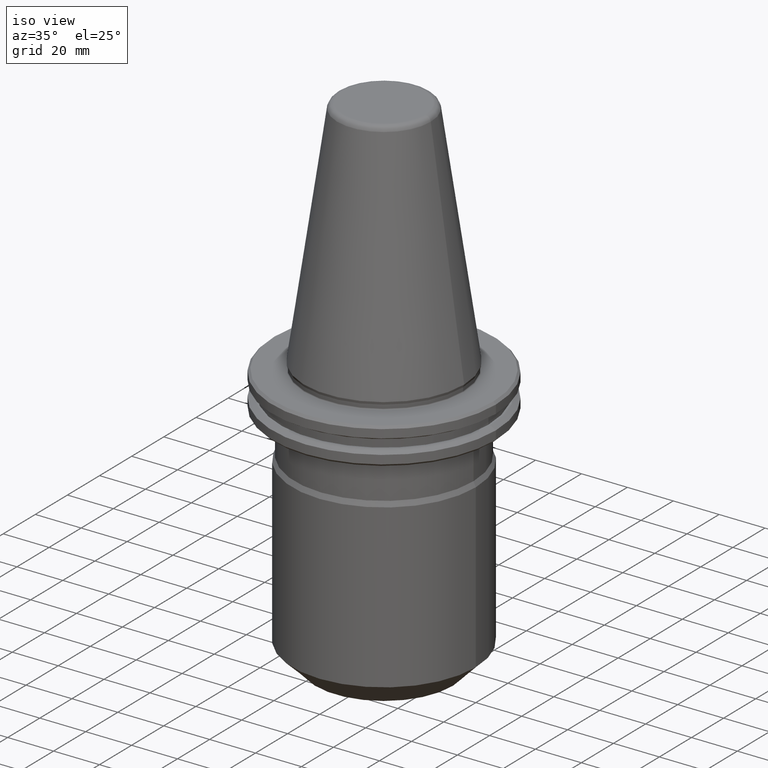
[diagram: clean part render]
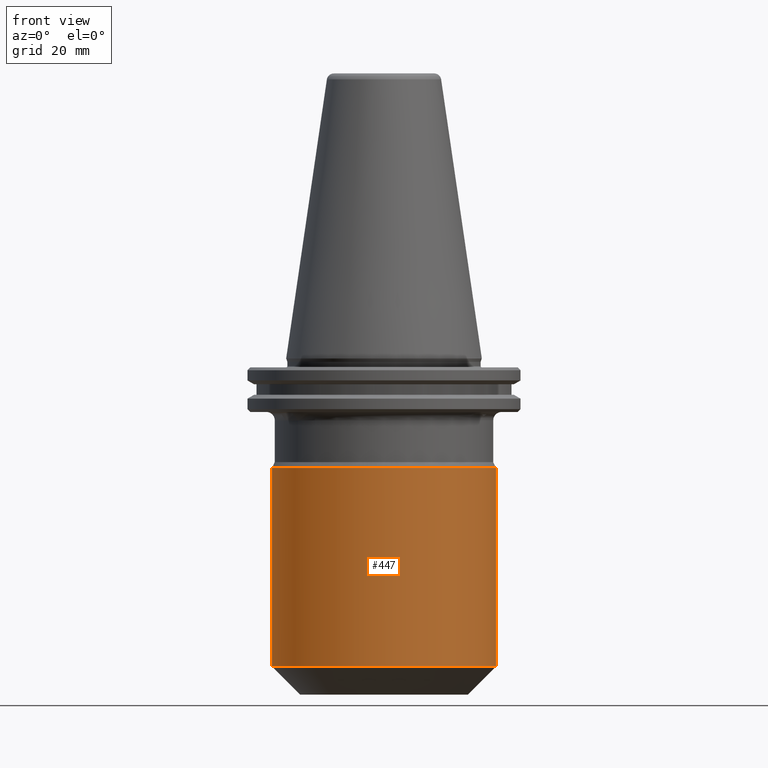
[diagram: tour spotlight — one face highlighted and labeled with its STEP entity id]
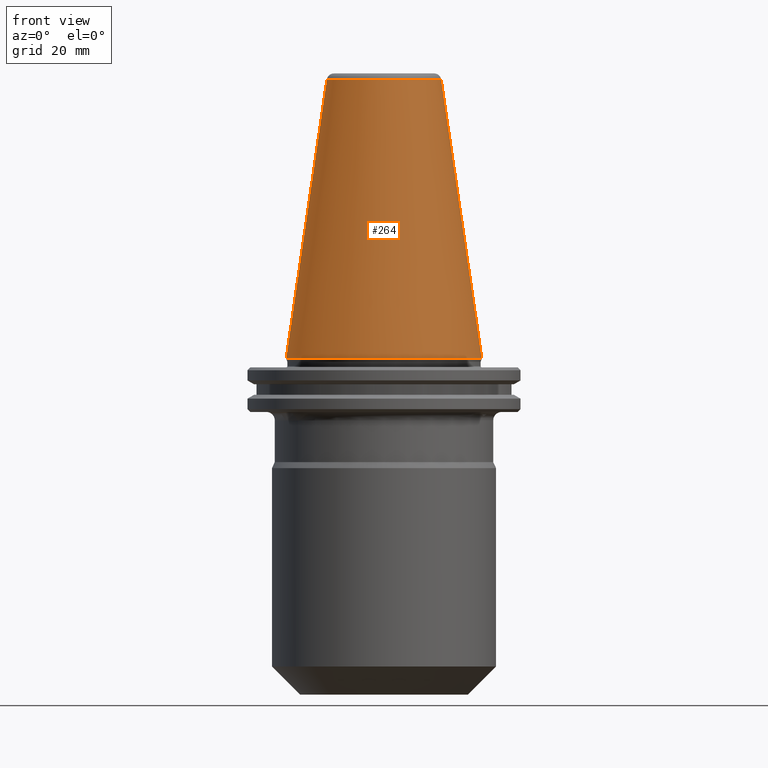
[diagram: tour spotlight — one face highlighted and labeled with its STEP entity id]
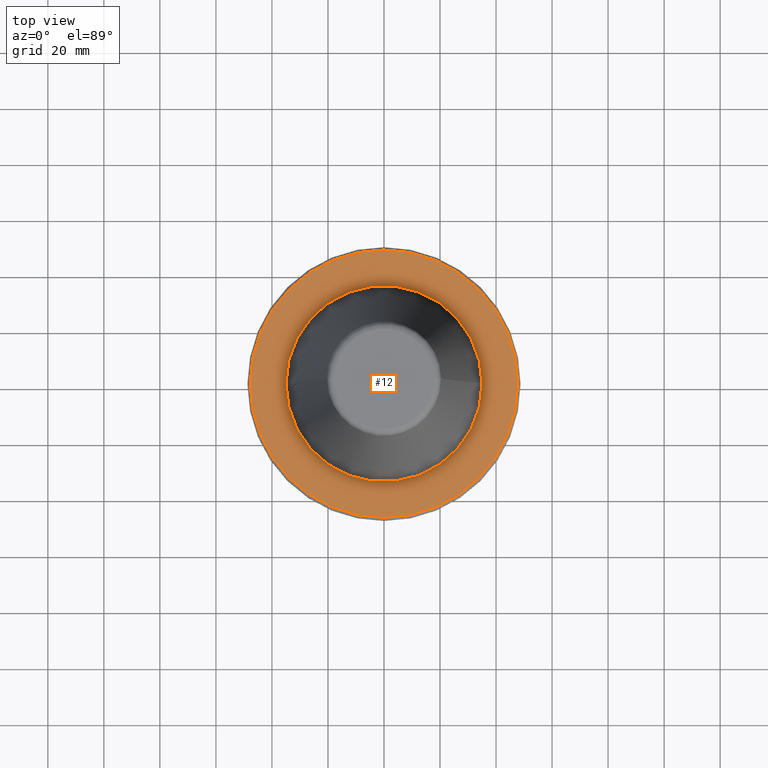
[diagram: tour spotlight — one face highlighted and labeled with its STEP entity id]
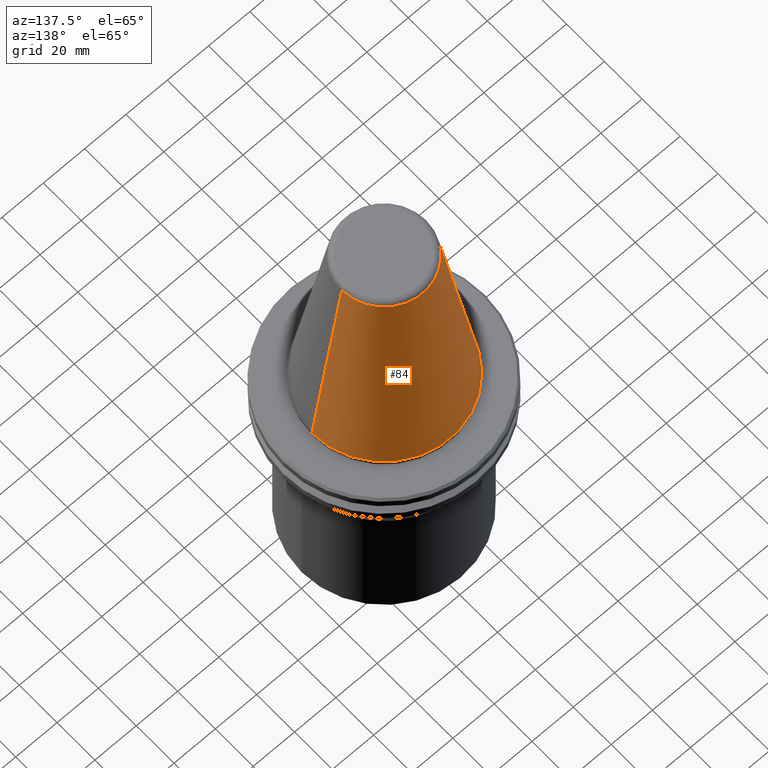
[diagram: tour spotlight — one face highlighted and labeled with its STEP entity id]
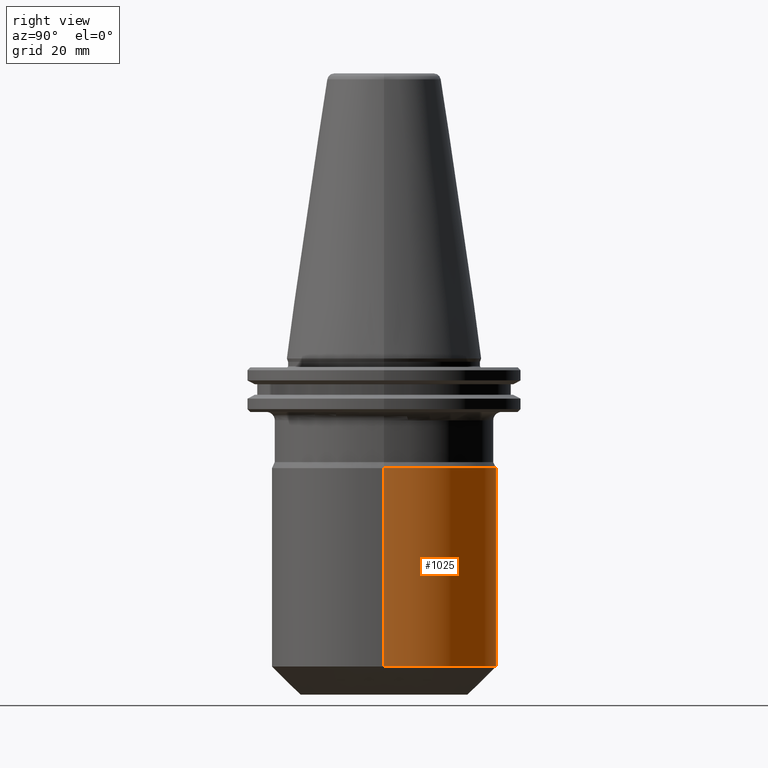
[diagram: tour spotlight — one face highlighted and labeled with its STEP entity id]
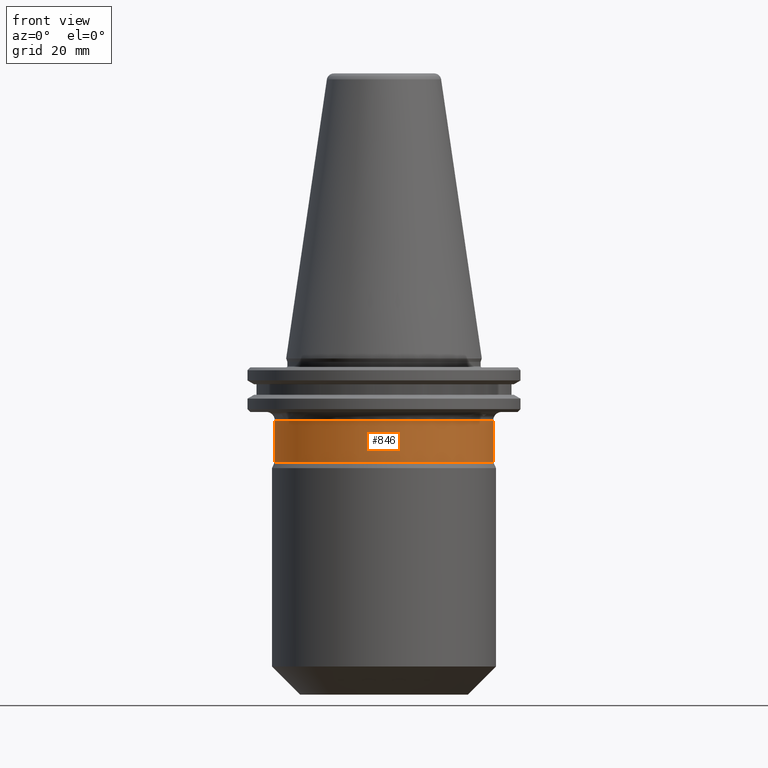
[diagram: tour spotlight — one face highlighted and labeled with its STEP entity id]
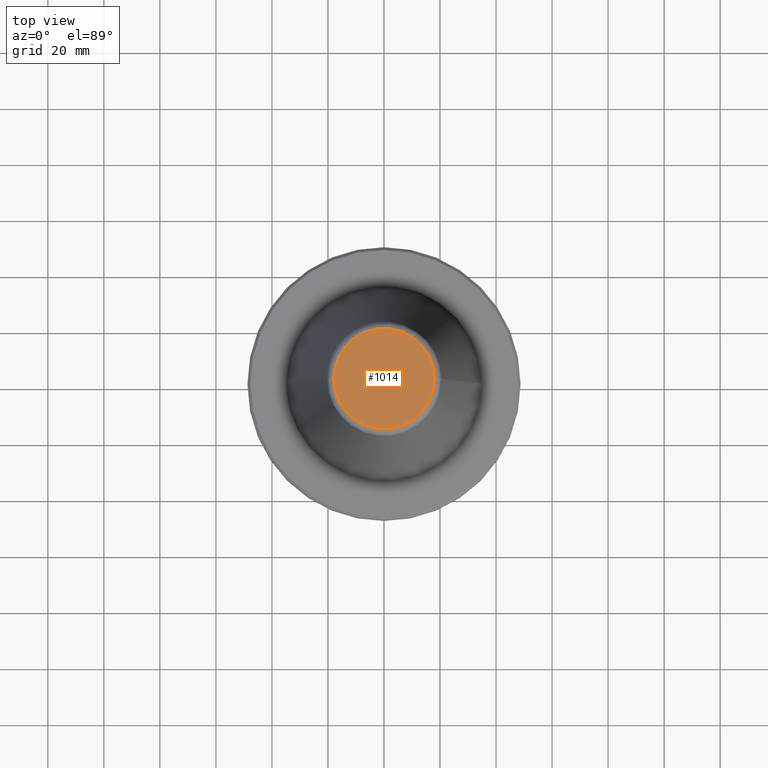
[diagram: tour spotlight — one face highlighted and labeled with its STEP entity id]
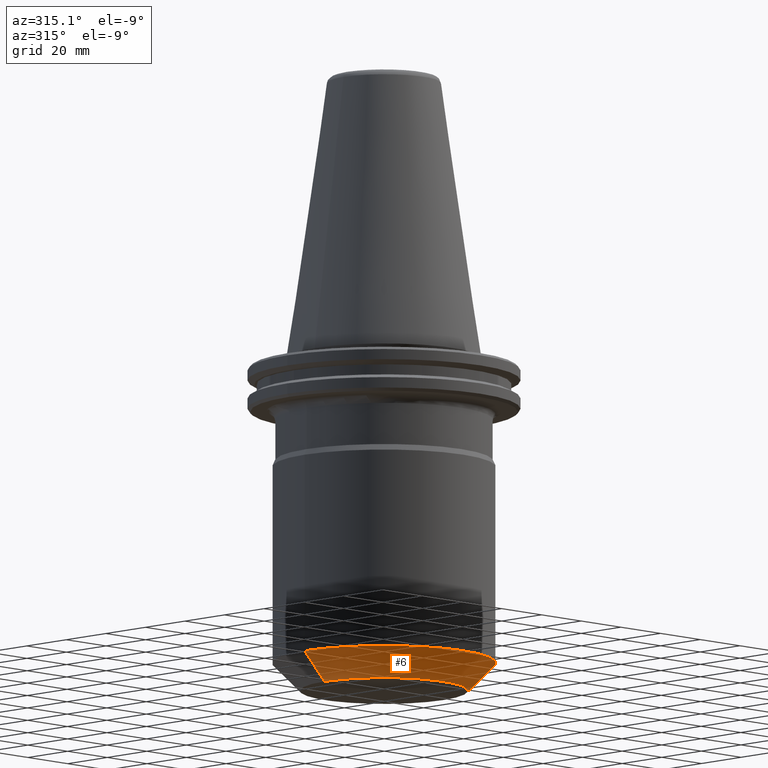
[diagram: tour spotlight — one face highlighted and labeled with its STEP entity id]
A machine part: a face-by-face anatomy tour. The part has 40 B-rep faces; the first image is the clean iso view, then the 8 largest visible faces are spotlighted one at a time (largest first), each with its STEP entity span.

Face 1 — front view, entity #447. In plain terms, the highlighted cylindrical surface (partial cylindrical patch) has radius 40 mm, axis along (-0, -0, 1).
Definition (entity closure, byte-faithful):
#38 = VERTEX_POINT ( 'NONE', #164 ) ;
#44 = CARTESIAN_POINT ( 'NONE',  ( -40.00000000000000000, 4.898587196589413000E-015, 158.1180504483445200 ) ) ;
#164 = CARTESIAN_POINT ( 'NONE',  ( -40.00000000000000000, 0.0000000000000000000, -39.13999999999995100 ) ) ;
#168 = EDGE_CURVE ( 'NONE', #38, #751, #490, .T. ) ;
#184 = EDGE_LOOP ( 'NONE', ( #298, #229, #210, #521 ) ) ;
#196 = CYLINDRICAL_SURFACE ( 'NONE', #488, 40.00000000000000000 ) ;
#201 = CARTESIAN_POINT ( 'NONE',  ( 40.00000000000000000, 0.0000000000000000000, -110.0000000000001300 ) ) ;
#210 = ORIENTED_EDGE ( 'NONE', *, *, #580, .T. ) ;
#213 = CARTESIAN_POINT ( 'NONE',  ( 40.00000000000000000, 0.0000000000000000000, 158.1180504483445200 ) ) ;
#229 = ORIENTED_EDGE ( 'NONE', *, *, #460, .T. ) ;
#273 = DIRECTION ( 'NONE',  ( -0.0000000000000000000, -0.0000000000000000000, 1.000000000000000000 ) ) ;
#284 = VERTEX_POINT ( 'NONE', #201 ) ;
#298 = ORIENTED_EDGE ( 'NONE', *, *, #614, .F. ) ;
#299 = CARTESIAN_POINT ( 'NONE',  ( 0.0000000000000000000, 0.0000000000000000000, -39.13999999999995100 ) ) ;
#315 = LINE ( 'NONE', #44, #515 ) ;
#425 = CIRCLE ( 'NONE', #432, 40.00000000000000000 ) ;
#432 = AXIS2_PLACEMENT_3D ( 'NONE', #891, #273, #858 ) ;
#447 = ADVANCED_FACE ( 'NONE', ( #866 ), #196, .T. ) ;
#448 = DIRECTION ( 'NONE',  ( -0.0000000000000000000, -0.0000000000000000000, 1.000000000000000000 ) ) ;
#460 = EDGE_CURVE ( 'NONE', #568, #284, #425, .T. ) ;
#485 = DIRECTION ( 'NONE',  ( -0.0000000000000000000, -0.0000000000000000000, 1.000000000000000000 ) ) ;
#488 = AXIS2_PLACEMENT_3D ( 'NONE', #759, #448, #1079 ) ;
#490 = CIRCLE ( 'NONE', #1090, 40.00000000000000000 ) ;
#515 = VECTOR ( 'NONE', #732, 1000.000000000000000 ) ;
#521 = ORIENTED_EDGE ( 'NONE', *, *, #168, .F. ) ;
#531 = CARTESIAN_POINT ( 'NONE',  ( -40.00000000000000000, 4.898587196589413000E-015, -110.0000000000001300 ) ) ;
#548 = DIRECTION ( 'NONE',  ( 1.000000000000000000, 0.0000000000000000000, 0.0000000000000000000 ) ) ;
#568 = VERTEX_POINT ( 'NONE', #531 ) ;
#580 = EDGE_CURVE ( 'NONE', #284, #751, #987, .T. ) ;
#614 = EDGE_CURVE ( 'NONE', #568, #38, #315, .T. ) ;
#732 = DIRECTION ( 'NONE',  ( -0.0000000000000000000, -0.0000000000000000000, 1.000000000000000000 ) ) ;
#751 = VERTEX_POINT ( 'NONE', #822 ) ;
#759 = CARTESIAN_POINT ( 'NONE',  ( 0.0000000000000000000, 0.0000000000000000000, 158.1180504483445200 ) ) ;
#764 = VECTOR ( 'NONE', #485, 1000.000000000000000 ) ;
#799 = DIRECTION ( 'NONE',  ( -0.0000000000000000000, -0.0000000000000000000, 1.000000000000000000 ) ) ;
#822 = CARTESIAN_POINT ( 'NONE',  ( 40.00000000000000000, 4.898587196589413000E-015, -39.13999999999995100 ) ) ;
#858 = DIRECTION ( 'NONE',  ( 1.000000000000000000, 0.0000000000000000000, 0.0000000000000000000 ) ) ;
#866 = FACE_OUTER_BOUND ( 'NONE', #184, .T. ) ;
#891 = CARTESIAN_POINT ( 'NONE',  ( 0.0000000000000000000, 0.0000000000000000000, -110.0000000000001300 ) ) ;
#987 = LINE ( 'NONE', #213, #764 ) ;
#1079 = DIRECTION ( 'NONE',  ( 1.000000000000000000, 0.0000000000000000000, 0.0000000000000000000 ) ) ;
#1090 = AXIS2_PLACEMENT_3D ( 'NONE', #299, #799, #548 ) ;

Face 2 — front view, entity #264. In plain terms, the highlighted conical surface has half-angle 8.297 deg.
Definition (entity closure, byte-faithful):
#20 = DIRECTION ( 'NONE',  ( -0.0000000000000000000, -0.0000000000000000000, 1.000000000000000000 ) ) ;
#56 = ORIENTED_EDGE ( 'NONE', *, *, #661, .F. ) ;
#71 = VECTOR ( 'NONE', #511, 1000.000000000000000 ) ;
#100 = CARTESIAN_POINT ( 'NONE',  ( 20.39829252569114000, 3.387574655494023600E-015, 99.61077055857353500 ) ) ;
#102 = VERTEX_POINT ( 'NONE', #569 ) ;
#188 = DIRECTION ( 'NONE',  ( 1.000000000000000000, 0.0000000000000000000, 0.0000000000000000000 ) ) ;
#203 = CARTESIAN_POINT ( 'NONE',  ( -34.92500000000009700, 0.0000000000000000000, -5.551115123125782700E-014 ) ) ;
#264 = ADVANCED_FACE ( 'NONE', ( #1082 ), #1028, .T. ) ;
#278 = VERTEX_POINT ( 'NONE', #100 ) ;
#289 = CIRCLE ( 'NONE', #295, 20.39829252569114000 ) ;
#295 = AXIS2_PLACEMENT_3D ( 'NONE', #913, #20, #842 ) ;
#363 = ORIENTED_EDGE ( 'NONE', *, *, #996, .T. ) ;
#380 = VERTEX_POINT ( 'NONE', #933 ) ;
#406 = EDGE_CURVE ( 'NONE', #278, #102, #503, .T. ) ;
#470 = EDGE_LOOP ( 'NONE', ( #594, #56, #363, #525 ) ) ;
#503 = LINE ( 'NONE', #703, #71 ) ;
#511 = DIRECTION ( 'NONE',  ( 0.1443082234293891500, 1.767266039134425100E-017, -0.9895327870518760800 ) ) ;
#525 = ORIENTED_EDGE ( 'NONE', *, *, #539, .T. ) ;
#539 = EDGE_CURVE ( 'NONE', #380, #102, #1047, .T. ) ;
#552 = DIRECTION ( 'NONE',  ( -1.000000000000000000, 0.0000000000000000000, 0.0000000000000000000 ) ) ;
#569 = CARTESIAN_POINT ( 'NONE',  ( 34.92500000000009700, 0.0000000000000000000, -5.551115123125782700E-014 ) ) ;
#573 = AXIS2_PLACEMENT_3D ( 'NONE', #837, #898, #552 ) ;
#594 = ORIENTED_EDGE ( 'NONE', *, *, #406, .F. ) ;
#626 = CARTESIAN_POINT ( 'NONE',  ( 0.0000000000000000000, 0.0000000000000000000, -5.551115123125782700E-014 ) ) ;
#647 = DIRECTION ( 'NONE',  ( -0.1443082234293891500, 0.0000000000000000000, -0.9895327870518760800 ) ) ;
#661 = EDGE_CURVE ( 'NONE', #758, #278, #289, .T. ) ;
#703 = CARTESIAN_POINT ( 'NONE',  ( 34.92500000000009700, 4.277078946022142700E-015, -5.551115123125782700E-014 ) ) ;
#758 = VERTEX_POINT ( 'NONE', #769 ) ;
#769 = CARTESIAN_POINT ( 'NONE',  ( -20.39829252569114000, 0.0000000000000000000, 99.61077055857353500 ) ) ;
#782 = DIRECTION ( 'NONE',  ( -0.0000000000000000000, -0.0000000000000000000, 1.000000000000000000 ) ) ;
#837 = CARTESIAN_POINT ( 'NONE',  ( 0.0000000000000000000, 0.0000000000000000000, -5.551115123125782700E-014 ) ) ;
#838 = VECTOR ( 'NONE', #647, 1000.000000000000000 ) ;
#842 = DIRECTION ( 'NONE',  ( 1.000000000000000000, 0.0000000000000000000, 0.0000000000000000000 ) ) ;
#876 = AXIS2_PLACEMENT_3D ( 'NONE', #626, #782, #188 ) ;
#898 = DIRECTION ( 'NONE',  ( 0.0000000000000000000, 0.0000000000000000000, -1.000000000000000000 ) ) ;
#913 = CARTESIAN_POINT ( 'NONE',  ( 0.0000000000000000000, 0.0000000000000000000, 99.61077055857353500 ) ) ;
#933 = CARTESIAN_POINT ( 'NONE',  ( -34.92500000000009700, 4.277078946022142700E-015, -5.551115123125782700E-014 ) ) ;
#996 = EDGE_CURVE ( 'NONE', #758, #380, #1071, .T. ) ;
#1028 = CONICAL_SURFACE ( 'NONE', #573, 34.92500000000009700, 0.1448138426689039600 ) ;
#1047 = CIRCLE ( 'NONE', #876, 34.92500000000009700 ) ;
#1071 = LINE ( 'NONE', #203, #838 ) ;
#1082 = FACE_OUTER_BOUND ( 'NONE', #470, .T. ) ;

Face 3 — top view, entity #12. In plain terms, the highlighted planar face has unit normal (0, 0, -1).
Definition (entity closure, byte-faithful):
#12 = ADVANCED_FACE ( 'NONE', ( #634, #1073 ), #811, .F. ) ;
#15 = EDGE_CURVE ( 'NONE', #374, #589, #167, .T. ) ;
#51 = CARTESIAN_POINT ( 'NONE',  ( 0.0000000000000000000, 47.74999999999995700, -3.199999999999869600 ) ) ;
#62 = DIRECTION ( 'NONE',  ( 1.000000000000000000, 0.0000000000000000000, 0.0000000000000000000 ) ) ;
#101 = DIRECTION ( 'NONE',  ( -0.0000000000000000000, -0.0000000000000000000, 1.000000000000000000 ) ) ;
#139 = ORIENTED_EDGE ( 'NONE', *, *, #384, .F. ) ;
#142 = AXIS2_PLACEMENT_3D ( 'NONE', #717, #472, #62 ) ;
#167 = CIRCLE ( 'NONE', #757, 47.74999999999995700 ) ;
#216 = DIRECTION ( 'NONE',  ( 1.000000000000000000, 0.0000000000000000000, 0.0000000000000000000 ) ) ;
#219 = CARTESIAN_POINT ( 'NONE',  ( 0.0000000000000000000, 0.0000000000000000000, -3.199999999999869600 ) ) ;
#250 = EDGE_CURVE ( 'NONE', #630, #1085, #853, .T. ) ;
#306 = DIRECTION ( 'NONE',  ( 1.000000000000000000, 0.0000000000000000000, 0.0000000000000000000 ) ) ;
#330 = CARTESIAN_POINT ( 'NONE',  ( 34.99999999999992200, 0.0000000000000000000, -3.199999999999966900 ) ) ;
#374 = VERTEX_POINT ( 'NONE', #953 ) ;
#384 = EDGE_CURVE ( 'NONE', #1085, #630, #946, .T. ) ;
#396 = CARTESIAN_POINT ( 'NONE',  ( 0.0000000000000000000, 0.0000000000000000000, -3.199999999999869600 ) ) ;
#403 = DIRECTION ( 'NONE',  ( -1.000000000000000000, 0.0000000000000000000, -0.0000000000000000000 ) ) ;
#456 = AXIS2_PLACEMENT_3D ( 'NONE', #396, #1050, #216 ) ;
#468 = EDGE_LOOP ( 'NONE', ( #673, #139 ) ) ;
#472 = DIRECTION ( 'NONE',  ( -0.0000000000000000000, -0.0000000000000000000, 1.000000000000000000 ) ) ;
#556 = CARTESIAN_POINT ( 'NONE',  ( -34.99999999999992200, 4.286263797015727000E-015, -3.199999999999966900 ) ) ;
#557 = EDGE_CURVE ( 'NONE', #589, #374, #602, .T. ) ;
#585 = CARTESIAN_POINT ( 'NONE',  ( 0.0000000000000000000, 0.0000000000000000000, -3.199999999999869600 ) ) ;
#589 = VERTEX_POINT ( 'NONE', #861 ) ;
#590 = EDGE_LOOP ( 'NONE', ( #809, #807 ) ) ;
#602 = CIRCLE ( 'NONE', #930, 47.74999999999995700 ) ;
#630 = VERTEX_POINT ( 'NONE', #330 ) ;
#634 = FACE_BOUND ( 'NONE', #468, .T. ) ;
#641 = DIRECTION ( 'NONE',  ( -0.0000000000000000000, -0.0000000000000000000, 1.000000000000000000 ) ) ;
#659 = DIRECTION ( 'NONE',  ( 0.0000000000000000000, 0.0000000000000000000, -1.000000000000000000 ) ) ;
#673 = ORIENTED_EDGE ( 'NONE', *, *, #250, .F. ) ;
#706 = DIRECTION ( 'NONE',  ( 1.000000000000000000, 0.0000000000000000000, 0.0000000000000000000 ) ) ;
#717 = CARTESIAN_POINT ( 'NONE',  ( 0.0000000000000000000, 0.0000000000000000000, -3.199999999999869600 ) ) ;
#757 = AXIS2_PLACEMENT_3D ( 'NONE', #219, #641, #306 ) ;
#807 = ORIENTED_EDGE ( 'NONE', *, *, #557, .T. ) ;
#808 = AXIS2_PLACEMENT_3D ( 'NONE', #51, #659, #403 ) ;
#809 = ORIENTED_EDGE ( 'NONE', *, *, #15, .T. ) ;
#811 = PLANE ( 'NONE',  #808 ) ;
#853 = CIRCLE ( 'NONE', #456, 34.99999999999992200 ) ;
#861 = CARTESIAN_POINT ( 'NONE',  ( 47.74999999999995700, 5.908920805885974100E-015, -3.199999999999869600 ) ) ;
#930 = AXIS2_PLACEMENT_3D ( 'NONE', #585, #101, #706 ) ;
#946 = CIRCLE ( 'NONE', #142, 34.99999999999992200 ) ;
#953 = CARTESIAN_POINT ( 'NONE',  ( -47.74999999999995700, 0.0000000000000000000, -3.199999999999869600 ) ) ;
#1050 = DIRECTION ( 'NONE',  ( -0.0000000000000000000, -0.0000000000000000000, 1.000000000000000000 ) ) ;
#1073 = FACE_OUTER_BOUND ( 'NONE', #590, .T. ) ;
#1085 = VERTEX_POINT ( 'NONE', #556 ) ;

Face 4 — auxiliary view, entity #84. In plain terms, the highlighted conical surface has half-angle 8.297 deg.
Definition (entity closure, byte-faithful):
#42 = AXIS2_PLACEMENT_3D ( 'NONE', #540, #792, #635 ) ;
#71 = VECTOR ( 'NONE', #511, 1000.000000000000000 ) ;
#84 = ADVANCED_FACE ( 'NONE', ( #793 ), #765, .T. ) ;
#100 = CARTESIAN_POINT ( 'NONE',  ( 20.39829252569114000, 3.387574655494023600E-015, 99.61077055857353500 ) ) ;
#102 = VERTEX_POINT ( 'NONE', #569 ) ;
#132 = DIRECTION ( 'NONE',  ( 0.0000000000000000000, 0.0000000000000000000, -1.000000000000000000 ) ) ;
#172 = DIRECTION ( 'NONE',  ( 1.000000000000000000, 0.0000000000000000000, 0.0000000000000000000 ) ) ;
#203 = CARTESIAN_POINT ( 'NONE',  ( -34.92500000000009700, 0.0000000000000000000, -5.551115123125782700E-014 ) ) ;
#215 = EDGE_LOOP ( 'NONE', ( #413, #723, #948, #371 ) ) ;
#247 = CARTESIAN_POINT ( 'NONE',  ( 0.0000000000000000000, 0.0000000000000000000, -5.551115123125782700E-014 ) ) ;
#259 = DIRECTION ( 'NONE',  ( -0.0000000000000000000, -0.0000000000000000000, 1.000000000000000000 ) ) ;
#278 = VERTEX_POINT ( 'NONE', #100 ) ;
#371 = ORIENTED_EDGE ( 'NONE', *, *, #996, .F. ) ;
#380 = VERTEX_POINT ( 'NONE', #933 ) ;
#406 = EDGE_CURVE ( 'NONE', #278, #102, #503, .T. ) ;
#413 = ORIENTED_EDGE ( 'NONE', *, *, #814, .F. ) ;
#475 = DIRECTION ( 'NONE',  ( -1.000000000000000000, 0.0000000000000000000, 0.0000000000000000000 ) ) ;
#503 = LINE ( 'NONE', #703, #71 ) ;
#511 = DIRECTION ( 'NONE',  ( 0.1443082234293891500, 1.767266039134425100E-017, -0.9895327870518760800 ) ) ;
#512 = EDGE_CURVE ( 'NONE', #102, #380, #633, .T. ) ;
#540 = CARTESIAN_POINT ( 'NONE',  ( 0.0000000000000000000, 0.0000000000000000000, 99.61077055857353500 ) ) ;
#569 = CARTESIAN_POINT ( 'NONE',  ( 34.92500000000009700, 0.0000000000000000000, -5.551115123125782700E-014 ) ) ;
#608 = AXIS2_PLACEMENT_3D ( 'NONE', #686, #259, #172 ) ;
#633 = CIRCLE ( 'NONE', #608, 34.92500000000009700 ) ;
#635 = DIRECTION ( 'NONE',  ( 1.000000000000000000, 0.0000000000000000000, 0.0000000000000000000 ) ) ;
#647 = DIRECTION ( 'NONE',  ( -0.1443082234293891500, 0.0000000000000000000, -0.9895327870518760800 ) ) ;
#686 = CARTESIAN_POINT ( 'NONE',  ( 0.0000000000000000000, 0.0000000000000000000, -5.551115123125782700E-014 ) ) ;
#703 = CARTESIAN_POINT ( 'NONE',  ( 34.92500000000009700, 4.277078946022142700E-015, -5.551115123125782700E-014 ) ) ;
#723 = ORIENTED_EDGE ( 'NONE', *, *, #406, .T. ) ;
#758 = VERTEX_POINT ( 'NONE', #769 ) ;
#765 = CONICAL_SURFACE ( 'NONE', #977, 34.92500000000009700, 0.1448138426689039600 ) ;
#769 = CARTESIAN_POINT ( 'NONE',  ( -20.39829252569114000, 0.0000000000000000000, 99.61077055857353500 ) ) ;
#792 = DIRECTION ( 'NONE',  ( -0.0000000000000000000, -0.0000000000000000000, 1.000000000000000000 ) ) ;
#793 = FACE_OUTER_BOUND ( 'NONE', #215, .T. ) ;
#814 = EDGE_CURVE ( 'NONE', #278, #758, #1026, .T. ) ;
#838 = VECTOR ( 'NONE', #647, 1000.000000000000000 ) ;
#933 = CARTESIAN_POINT ( 'NONE',  ( -34.92500000000009700, 4.277078946022142700E-015, -5.551115123125782700E-014 ) ) ;
#948 = ORIENTED_EDGE ( 'NONE', *, *, #512, .T. ) ;
#977 = AXIS2_PLACEMENT_3D ( 'NONE', #247, #132, #475 ) ;
#996 = EDGE_CURVE ( 'NONE', #758, #380, #1071, .T. ) ;
#1026 = CIRCLE ( 'NONE', #42, 20.39829252569114000 ) ;
#1071 = LINE ( 'NONE', #203, #838 ) ;

Face 5 — right view, entity #1025. In plain terms, the highlighted cylindrical surface (partial cylindrical patch) has radius 40 mm, axis along (-0, -0, 1).
Definition (entity closure, byte-faithful):
#31 = DIRECTION ( 'NONE',  ( -0.0000000000000000000, -0.0000000000000000000, 1.000000000000000000 ) ) ;
#38 = VERTEX_POINT ( 'NONE', #164 ) ;
#44 = CARTESIAN_POINT ( 'NONE',  ( -40.00000000000000000, 4.898587196589413000E-015, 158.1180504483445200 ) ) ;
#140 = CYLINDRICAL_SURFACE ( 'NONE', #372, 40.00000000000000000 ) ;
#164 = CARTESIAN_POINT ( 'NONE',  ( -40.00000000000000000, 0.0000000000000000000, -39.13999999999995100 ) ) ;
#192 = CARTESIAN_POINT ( 'NONE',  ( 0.0000000000000000000, 0.0000000000000000000, -110.0000000000001300 ) ) ;
#201 = CARTESIAN_POINT ( 'NONE',  ( 40.00000000000000000, 0.0000000000000000000, -110.0000000000001300 ) ) ;
#213 = CARTESIAN_POINT ( 'NONE',  ( 40.00000000000000000, 0.0000000000000000000, 158.1180504483445200 ) ) ;
#249 = FACE_OUTER_BOUND ( 'NONE', #975, .T. ) ;
#284 = VERTEX_POINT ( 'NONE', #201 ) ;
#315 = LINE ( 'NONE', #44, #515 ) ;
#332 = DIRECTION ( 'NONE',  ( -0.0000000000000000000, -0.0000000000000000000, 1.000000000000000000 ) ) ;
#344 = EDGE_CURVE ( 'NONE', #284, #568, #756, .T. ) ;
#361 = DIRECTION ( 'NONE',  ( -0.0000000000000000000, -0.0000000000000000000, 1.000000000000000000 ) ) ;
#372 = AXIS2_PLACEMENT_3D ( 'NONE', #605, #361, #538 ) ;
#381 = DIRECTION ( 'NONE',  ( 1.000000000000000000, 0.0000000000000000000, 0.0000000000000000000 ) ) ;
#410 = CARTESIAN_POINT ( 'NONE',  ( 0.0000000000000000000, 0.0000000000000000000, -39.13999999999995100 ) ) ;
#485 = DIRECTION ( 'NONE',  ( -0.0000000000000000000, -0.0000000000000000000, 1.000000000000000000 ) ) ;
#492 = EDGE_CURVE ( 'NONE', #751, #38, #1072, .T. ) ;
#515 = VECTOR ( 'NONE', #732, 1000.000000000000000 ) ;
#531 = CARTESIAN_POINT ( 'NONE',  ( -40.00000000000000000, 4.898587196589413000E-015, -110.0000000000001300 ) ) ;
#538 = DIRECTION ( 'NONE',  ( 1.000000000000000000, 0.0000000000000000000, 0.0000000000000000000 ) ) ;
#550 = AXIS2_PLACEMENT_3D ( 'NONE', #410, #332, #927 ) ;
#568 = VERTEX_POINT ( 'NONE', #531 ) ;
#580 = EDGE_CURVE ( 'NONE', #284, #751, #987, .T. ) ;
#605 = CARTESIAN_POINT ( 'NONE',  ( 0.0000000000000000000, 0.0000000000000000000, 158.1180504483445200 ) ) ;
#614 = EDGE_CURVE ( 'NONE', #568, #38, #315, .T. ) ;
#651 = ORIENTED_EDGE ( 'NONE', *, *, #580, .F. ) ;
#675 = ORIENTED_EDGE ( 'NONE', *, *, #344, .T. ) ;
#732 = DIRECTION ( 'NONE',  ( -0.0000000000000000000, -0.0000000000000000000, 1.000000000000000000 ) ) ;
#751 = VERTEX_POINT ( 'NONE', #822 ) ;
#756 = CIRCLE ( 'NONE', #840, 40.00000000000000000 ) ;
#764 = VECTOR ( 'NONE', #485, 1000.000000000000000 ) ;
#822 = CARTESIAN_POINT ( 'NONE',  ( 40.00000000000000000, 4.898587196589413000E-015, -39.13999999999995100 ) ) ;
#840 = AXIS2_PLACEMENT_3D ( 'NONE', #192, #31, #381 ) ;
#927 = DIRECTION ( 'NONE',  ( 1.000000000000000000, 0.0000000000000000000, 0.0000000000000000000 ) ) ;
#939 = ORIENTED_EDGE ( 'NONE', *, *, #614, .T. ) ;
#975 = EDGE_LOOP ( 'NONE', ( #675, #939, #1017, #651 ) ) ;
#987 = LINE ( 'NONE', #213, #764 ) ;
#1017 = ORIENTED_EDGE ( 'NONE', *, *, #492, .F. ) ;
#1025 = ADVANCED_FACE ( 'NONE', ( #249 ), #140, .T. ) ;
#1072 = CIRCLE ( 'NONE', #550, 40.00000000000000000 ) ;

Face 6 — front view, entity #846. In plain terms, the highlighted cylindrical surface (partial cylindrical patch) has radius 39 mm, axis along (-0, -0, 1).
Definition (entity closure, byte-faithful):
#11 = DIRECTION ( 'NONE',  ( 1.000000000000000000, 0.0000000000000000000, 0.0000000000000000000 ) ) ;
#21 = DIRECTION ( 'NONE',  ( 0.0000000000000000000, 0.0000000000000000000, -1.000000000000000000 ) ) ;
#28 = CARTESIAN_POINT ( 'NONE',  ( 39.00000000000000000, 0.0000000000000000000, -36.99549307949040200 ) ) ;
#32 = EDGE_CURVE ( 'NONE', #221, #1030, #819, .T. ) ;
#111 = EDGE_LOOP ( 'NONE', ( #648, #771, #211, #421 ) ) ;
#123 = VERTEX_POINT ( 'NONE', #28 ) ;
#151 = CIRCLE ( 'NONE', #741, 39.00000000000000000 ) ;
#163 = DIRECTION ( 'NONE',  ( -0.0000000000000000000, -0.0000000000000000000, 1.000000000000000000 ) ) ;
#202 = DIRECTION ( 'NONE',  ( -0.0000000000000000000, -0.0000000000000000000, 1.000000000000000000 ) ) ;
#211 = ORIENTED_EDGE ( 'NONE', *, *, #482, .T. ) ;
#221 = VERTEX_POINT ( 'NONE', #1008 ) ;
#317 = CARTESIAN_POINT ( 'NONE',  ( 0.0000000000000000000, 0.0000000000000000000, 158.1180504483445200 ) ) ;
#319 = EDGE_CURVE ( 'NONE', #1084, #1030, #151, .T. ) ;
#327 = FACE_OUTER_BOUND ( 'NONE', #111, .T. ) ;
#328 = AXIS2_PLACEMENT_3D ( 'NONE', #317, #163, #516 ) ;
#348 = CARTESIAN_POINT ( 'NONE',  ( 0.0000000000000000000, 0.0000000000000000000, -22.09999999999995200 ) ) ;
#421 = ORIENTED_EDGE ( 'NONE', *, *, #319, .T. ) ;
#449 = AXIS2_PLACEMENT_3D ( 'NONE', #554, #202, #932 ) ;
#455 = LINE ( 'NONE', #1036, #839 ) ;
#482 = EDGE_CURVE ( 'NONE', #123, #1084, #455, .T. ) ;
#516 = DIRECTION ( 'NONE',  ( 1.000000000000000000, 0.0000000000000000000, 0.0000000000000000000 ) ) ;
#533 = CYLINDRICAL_SURFACE ( 'NONE', #328, 39.00000000000000000 ) ;
#554 = CARTESIAN_POINT ( 'NONE',  ( 0.0000000000000000000, 0.0000000000000000000, -36.99549307949040200 ) ) ;
#603 = VECTOR ( 'NONE', #1075, 1000.000000000000000 ) ;
#642 = DIRECTION ( 'NONE',  ( -0.0000000000000000000, -0.0000000000000000000, 1.000000000000000000 ) ) ;
#648 = ORIENTED_EDGE ( 'NONE', *, *, #32, .F. ) ;
#724 = CARTESIAN_POINT ( 'NONE',  ( 39.00000000000000000, 0.0000000000000000000, -22.09999999999995200 ) ) ;
#734 = CIRCLE ( 'NONE', #449, 39.00000000000000000 ) ;
#741 = AXIS2_PLACEMENT_3D ( 'NONE', #348, #21, #11 ) ;
#771 = ORIENTED_EDGE ( 'NONE', *, *, #868, .T. ) ;
#819 = LINE ( 'NONE', #936, #603 ) ;
#839 = VECTOR ( 'NONE', #642, 1000.000000000000000 ) ;
#846 = ADVANCED_FACE ( 'NONE', ( #327 ), #533, .T. ) ;
#868 = EDGE_CURVE ( 'NONE', #221, #123, #734, .T. ) ;
#932 = DIRECTION ( 'NONE',  ( 1.000000000000000000, 0.0000000000000000000, 0.0000000000000000000 ) ) ;
#936 = CARTESIAN_POINT ( 'NONE',  ( -39.00000000000000000, 4.776122516674677900E-015, 158.1180504483445200 ) ) ;
#951 = CARTESIAN_POINT ( 'NONE',  ( -39.00000000000000000, 4.776122516674677900E-015, -22.09999999999995200 ) ) ;
#1008 = CARTESIAN_POINT ( 'NONE',  ( -39.00000000000000000, 4.776122516674677900E-015, -36.99549307949040200 ) ) ;
#1030 = VERTEX_POINT ( 'NONE', #951 ) ;
#1036 = CARTESIAN_POINT ( 'NONE',  ( 39.00000000000000000, 0.0000000000000000000, 158.1180504483445200 ) ) ;
#1075 = DIRECTION ( 'NONE',  ( -0.0000000000000000000, -0.0000000000000000000, 1.000000000000000000 ) ) ;
#1084 = VERTEX_POINT ( 'NONE', #724 ) ;

Face 7 — top view, entity #1014. In plain terms, the highlighted planar face has unit normal (0, 0, -1).
Definition (entity closure, byte-faithful):
#7 = DIRECTION ( 'NONE',  ( 1.000000000000000000, 0.0000000000000000000, 0.0000000000000000000 ) ) ;
#69 = CIRCLE ( 'NONE', #500, 17.92446055806129500 ) ;
#75 = AXIS2_PLACEMENT_3D ( 'NONE', #261, #1023, #459 ) ;
#85 = ORIENTED_EDGE ( 'NONE', *, *, #825, .T. ) ;
#94 = AXIS2_PLACEMENT_3D ( 'NONE', #429, #507, #849 ) ;
#98 = PLANE ( 'NONE',  #75 ) ;
#128 = CIRCLE ( 'NONE', #94, 17.92446055806129500 ) ;
#261 = CARTESIAN_POINT ( 'NONE',  ( 0.0000000000000000000, 17.92446055806129500, 101.7500000000000100 ) ) ;
#279 = CARTESIAN_POINT ( 'NONE',  ( 17.92446055806129500, 0.0000000000000000000, 101.7500000000000900 ) ) ;
#429 = CARTESIAN_POINT ( 'NONE',  ( 0.0000000000000000000, 0.0000000000000000000, 101.7500000000000900 ) ) ;
#459 = DIRECTION ( 'NONE',  ( -1.000000000000000000, 0.0000000000000000000, -0.0000000000000000000 ) ) ;
#500 = AXIS2_PLACEMENT_3D ( 'NONE', #879, #1010, #7 ) ;
#507 = DIRECTION ( 'NONE',  ( -0.0000000000000000000, -0.0000000000000000000, 1.000000000000000000 ) ) ;
#632 = FACE_OUTER_BOUND ( 'NONE', #981, .T. ) ;
#722 = CARTESIAN_POINT ( 'NONE',  ( -17.92446055806129500, 2.346591844926584100E-015, 101.7500000000000900 ) ) ;
#825 = EDGE_CURVE ( 'NONE', #1039, #885, #128, .T. ) ;
#849 = DIRECTION ( 'NONE',  ( 1.000000000000000000, 0.0000000000000000000, 0.0000000000000000000 ) ) ;
#879 = CARTESIAN_POINT ( 'NONE',  ( 0.0000000000000000000, 0.0000000000000000000, 101.7500000000000900 ) ) ;
#884 = EDGE_CURVE ( 'NONE', #885, #1039, #69, .T. ) ;
#885 = VERTEX_POINT ( 'NONE', #722 ) ;
#981 = EDGE_LOOP ( 'NONE', ( #85, #1066 ) ) ;
#1010 = DIRECTION ( 'NONE',  ( -0.0000000000000000000, -0.0000000000000000000, 1.000000000000000000 ) ) ;
#1014 = ADVANCED_FACE ( 'NONE', ( #632 ), #98, .F. ) ;
#1023 = DIRECTION ( 'NONE',  ( 0.0000000000000000000, 0.0000000000000000000, -1.000000000000000000 ) ) ;
#1039 = VERTEX_POINT ( 'NONE', #279 ) ;
#1066 = ORIENTED_EDGE ( 'NONE', *, *, #884, .T. ) ;

Face 8 — auxiliary view, entity #6. In plain terms, the highlighted conical surface has half-angle 45 deg.
Definition (entity closure, byte-faithful):
#6 = ADVANCED_FACE ( 'NONE', ( #664 ), #404, .T. ) ;
#26 = VERTEX_POINT ( 'NONE', #454 ) ;
#57 = DIRECTION ( 'NONE',  ( 1.000000000000000000, 0.0000000000000000000, 0.0000000000000000000 ) ) ;
#87 = EDGE_CURVE ( 'NONE', #26, #568, #988, .T. ) ;
#121 = CARTESIAN_POINT ( 'NONE',  ( -30.00000000000000000, 3.673940397442059200E-015, -120.0000000000000900 ) ) ;
#201 = CARTESIAN_POINT ( 'NONE',  ( 40.00000000000000000, 0.0000000000000000000, -110.0000000000001300 ) ) ;
#226 = LINE ( 'NONE', #957, #680 ) ;
#273 = DIRECTION ( 'NONE',  ( -0.0000000000000000000, -0.0000000000000000000, 1.000000000000000000 ) ) ;
#283 = ORIENTED_EDGE ( 'NONE', *, *, #745, .T. ) ;
#284 = VERTEX_POINT ( 'NONE', #201 ) ;
#331 = ORIENTED_EDGE ( 'NONE', *, *, #87, .F. ) ;
#346 = VECTOR ( 'NONE', #918, 1000.000000000000000 ) ;
#404 = CONICAL_SURFACE ( 'NONE', #656, 30.00000000000000000, 0.7853981633974507200 ) ;
#425 = CIRCLE ( 'NONE', #432, 40.00000000000000000 ) ;
#432 = AXIS2_PLACEMENT_3D ( 'NONE', #891, #273, #858 ) ;
#454 = CARTESIAN_POINT ( 'NONE',  ( -30.00000000000000000, 4.286263797015735700E-015, -120.0000000000000900 ) ) ;
#460 = EDGE_CURVE ( 'NONE', #568, #284, #425, .T. ) ;
#531 = CARTESIAN_POINT ( 'NONE',  ( -40.00000000000000000, 4.898587196589413000E-015, -110.0000000000001300 ) ) ;
#555 = ORIENTED_EDGE ( 'NONE', *, *, #938, .T. ) ;
#568 = VERTEX_POINT ( 'NONE', #531 ) ;
#571 = DIRECTION ( 'NONE',  ( -0.0000000000000000000, -0.0000000000000000000, 1.000000000000000000 ) ) ;
#572 = EDGE_LOOP ( 'NONE', ( #331, #283, #555, #855 ) ) ;
#656 = AXIS2_PLACEMENT_3D ( 'NONE', #979, #571, #896 ) ;
#664 = FACE_OUTER_BOUND ( 'NONE', #572, .T. ) ;
#676 = CARTESIAN_POINT ( 'NONE',  ( 30.00000000000000000, 0.0000000000000000000, -120.0000000000000900 ) ) ;
#680 = VECTOR ( 'NONE', #1040, 1000.000000000000000 ) ;
#742 = CARTESIAN_POINT ( 'NONE',  ( 0.0000000000000000000, 0.0000000000000000000, -120.0000000000000900 ) ) ;
#743 = VERTEX_POINT ( 'NONE', #676 ) ;
#745 = EDGE_CURVE ( 'NONE', #26, #743, #1081, .T. ) ;
#752 = AXIS2_PLACEMENT_3D ( 'NONE', #742, #965, #57 ) ;
#855 = ORIENTED_EDGE ( 'NONE', *, *, #460, .F. ) ;
#858 = DIRECTION ( 'NONE',  ( 1.000000000000000000, 0.0000000000000000000, 0.0000000000000000000 ) ) ;
#891 = CARTESIAN_POINT ( 'NONE',  ( 0.0000000000000000000, 0.0000000000000000000, -110.0000000000001300 ) ) ;
#896 = DIRECTION ( 'NONE',  ( 1.000000000000000000, 0.0000000000000000000, 0.0000000000000000000 ) ) ;
#918 = DIRECTION ( 'NONE',  ( -0.7071067811865492400, 8.659560562354953800E-017, 0.7071067811865458000 ) ) ;
#938 = EDGE_CURVE ( 'NONE', #743, #284, #226, .T. ) ;
#957 = CARTESIAN_POINT ( 'NONE',  ( 30.00000000000000000, 0.0000000000000000000, -120.0000000000000900 ) ) ;
#965 = DIRECTION ( 'NONE',  ( -0.0000000000000000000, -0.0000000000000000000, 1.000000000000000000 ) ) ;
#979 = CARTESIAN_POINT ( 'NONE',  ( 0.0000000000000000000, 0.0000000000000000000, -120.0000000000000900 ) ) ;
#988 = LINE ( 'NONE', #121, #346 ) ;
#1040 = DIRECTION ( 'NONE',  ( 0.7071067811865492400, 0.0000000000000000000, 0.7071067811865458000 ) ) ;
#1081 = CIRCLE ( 'NONE', #752, 30.00000000000000000 ) ;